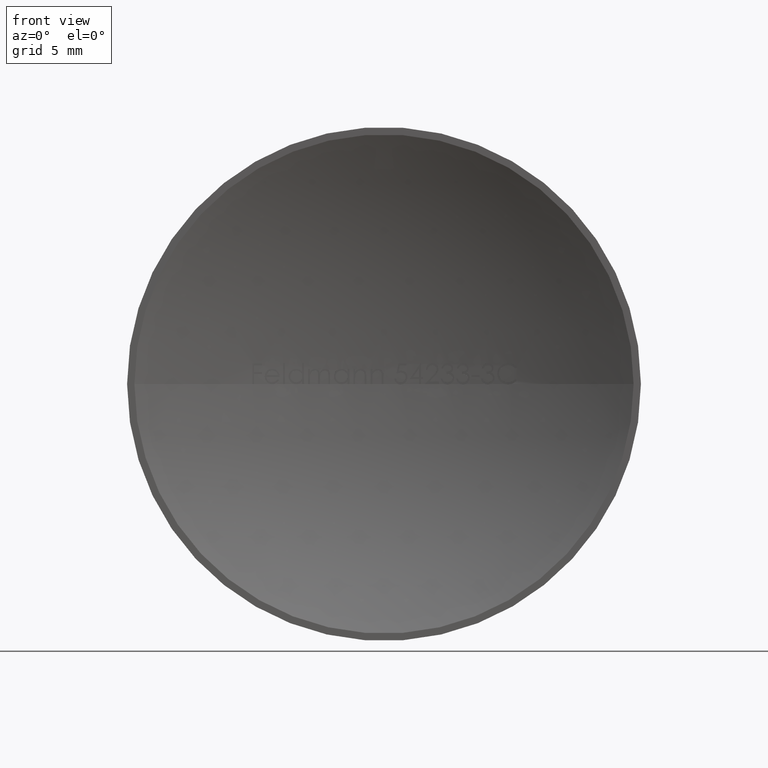
[diagram: clean part render]
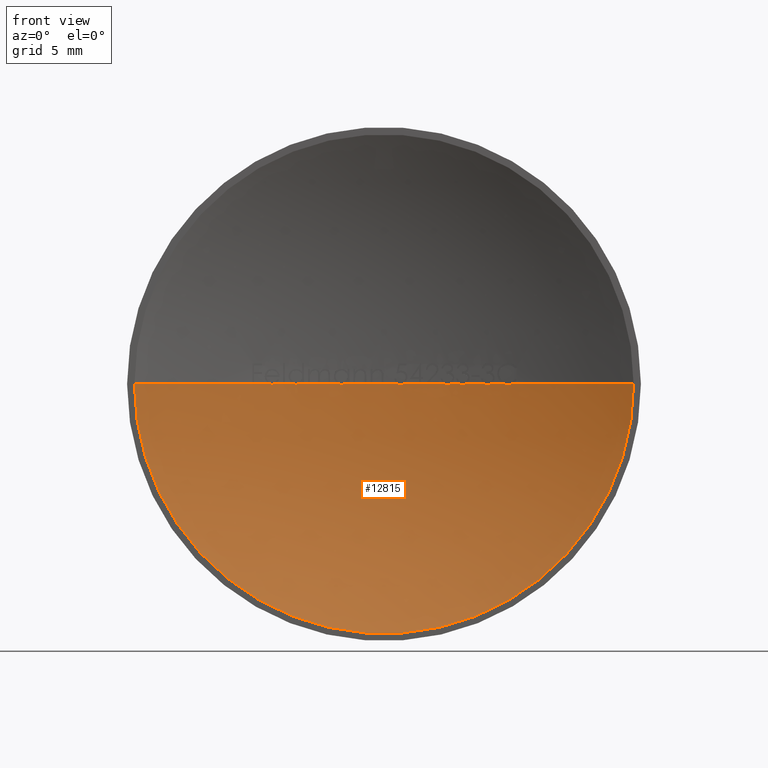
[diagram: same view with one face highlighted and labeled with its STEP entity id]
A machine part, front view. The second image highlights one B-rep face of the part: STEP entity #12815.
In plain terms, the highlighted spherical surface has radius 35.4903 mm.
Its self-contained STEP definition (entity closure, byte-faithful):
#20 = CARTESIAN_POINT ( 'NONE',  ( -0.04240117521366578600, 3.999974671112005400, 2.897537772328175200E-015 ) ) ;
#56 = AXIS2_PLACEMENT_3D ( 'NONE', #890, #8166, #212 ) ;
#125 = CARTESIAN_POINT ( 'NONE',  ( 5.289378749191504500, 3.603636870889138000, -0.02084278131947275500 ) ) ;
#126 = VERTEX_POINT ( 'NONE', #3430 ) ;
#136 = CARTESIAN_POINT ( 'NONE',  ( -2.794767461271358200, 3.889784567808195300, -0.01696047008546997300 ) ) ;
#177 = CARTESIAN_POINT ( 'NONE',  ( 1.231762461655755200, 3.978630332660930200, -0.01179720284565201200 ) ) ;
#212 = DIRECTION ( 'NONE',  ( 1.000000000000000000, 0.0000000000000000000, 0.0000000000000000000 ) ) ;
#214 = CARTESIAN_POINT ( 'NONE',  ( 5.184086218272386600, 3.619327257590883500, -0.03332736078147752900 ) ) ;
#231 = B_SPLINE_CURVE_WITH_KNOTS ( 'NONE', 3,
 ( #1361, #2340, #9658, #11810, #4521, #11680 ),
 .UNSPECIFIED., .F., .F.,
 ( 4, 2, 4 ),
 ( 0.0000000000000000000, 0.1451483626187423100, 0.2902967252374846200 ),
 .UNSPECIFIED. ) ;
#278 = VERTEX_POINT ( 'NONE', #525 ) ;
#298 = CIRCLE ( 'NONE', #4850, 35.49031249999995900 ) ;
#328 = DIRECTION ( 'NONE',  ( 0.0000000000000000000, -0.0000000000000000000, 1.000000000000000000 ) ) ;
#368 = AXIS2_PLACEMENT_3D ( 'NONE', #3068, #10386, #5307 ) ;
#424 = CARTESIAN_POINT ( 'NONE',  ( 5.096145653006650500, 3.632210737648179600, -0.02987415655121449700 ) ) ;
#457 = CARTESIAN_POINT ( 'NONE',  ( 16.36833833961164700, -5.876582875017628900E-017, -2.004543315496607100E-015 ) ) ;
#461 = DIRECTION ( 'NONE',  ( 1.000000000000000000, 0.0000000000000000000, 0.0000000000000000000 ) ) ;
#465 = DIRECTION ( 'NONE',  ( -1.224646799147353200E-016, 7.147165931888596700E-031, -1.000000000000000000 ) ) ;
#471 = CARTESIAN_POINT ( 'NONE',  ( 1.167220775306751800E-014, -31.49031249999995200, 0.0000000000000000000 ) ) ;
#499 = AXIS2_PLACEMENT_3D ( 'NONE', #11722, #1360, #12670 ) ;
#515 = AXIS2_PLACEMENT_3D ( 'NONE', #7256, #12516, #13067 ) ;
#523 = CARTESIAN_POINT ( 'NONE',  ( 4.981234215366165500, 3.648691267801142900, -1.070503195373399400E-005 ) ) ;
#525 = CARTESIAN_POINT ( 'NONE',  ( -7.198439620956127900, 3.262309432472975800, -6.394050978554282400E-007 ) ) ;
#530 = CARTESIAN_POINT ( 'NONE',  ( 1.167220775306751800E-014, -31.49031249999995200, 0.0000000000000000000 ) ) ;
#536 = CARTESIAN_POINT ( 'NONE',  ( 0.9062174198603552000, 3.988428193026531100, 9.686141385284946100E-006 ) ) ;
#541 = CARTESIAN_POINT ( 'NONE',  ( 1.167220775306751800E-014, -31.49031249999995200, 0.0000000000000000000 ) ) ;
#595 = CIRCLE ( 'NONE', #515, 35.49031249999995900 ) ;
#604 = CARTESIAN_POINT ( 'NONE',  ( 5.010017504780373400, 3.644611020908704400, -0.01193980852341045400 ) ) ;
#611 = VERTEX_POINT ( 'NONE', #9187 ) ;
#632 = B_SPLINE_CURVE_WITH_KNOTS ( 'NONE', 3,
 ( #2966, #5207, #10365, #12466 ),
 .UNSPECIFIED., .F., .F.,
 ( 4, 4 ),
 ( 0.6399536667278555900, 1.000000000000000000 ),
 .UNSPECIFIED. ) ;
#647 = CARTESIAN_POINT ( 'NONE',  ( -7.340968466212598500, 3.232477936083666400, -0.01696047008547008400 ) ) ;
#678 = EDGE_CURVE ( 'NONE', #6561, #7117, #7903, .T. ) ;
#708 = CARTESIAN_POINT ( 'NONE',  ( 1.167220775306751800E-014, -31.49031249999995200, 0.0000000000000000000 ) ) ;
#710 = ORIENTED_EDGE ( 'NONE', *, *, #2263, .T. ) ;
#739 = CARTESIAN_POINT ( 'NONE',  ( -2.281183226495717700, 3.926611200892084200, 2.891548149729563600E-015 ) ) ;
#789 = CARTESIAN_POINT ( 'NONE',  ( -3.536258012820507000, 3.823384001703407500, 2.883120359124806300E-015 ) ) ;
#790 = ORIENTED_EDGE ( 'NONE', *, *, #11211, .T. ) ;
#793 = DIRECTION ( 'NONE',  ( 0.0000000000000000000, 0.0000000000000000000, 1.000000000000000000 ) ) ;
#829 = ORIENTED_EDGE ( 'NONE', *, *, #5659, .T. ) ;
#839 = CIRCLE ( 'NONE', #11099, 35.49031249999995900 ) ;
#861 = CARTESIAN_POINT ( 'NONE',  ( 1.167220775306751800E-014, -31.49031249999995200, 0.0000000000000000000 ) ) ;
#874 = CARTESIAN_POINT ( 'NONE',  ( -7.340968466212598500, 3.232477936083666400, -0.01696047008547008400 ) ) ;
#888 = CIRCLE ( 'NONE', #8474, 35.49031249999995900 ) ;
#890 = CARTESIAN_POINT ( 'NONE',  ( 1.167220775306751800E-014, -31.49031249999995200, 0.0000000000000000000 ) ) ;
#901 = DIRECTION ( 'NONE',  ( -1.000000000000000000, 0.0000000000000000000, 1.224646799147353500E-016 ) ) ;
#920 = CARTESIAN_POINT ( 'NONE',  ( -2.736590742355968300, 3.894335117221183300, -0.01425535986851741300 ) ) ;
#927 = EDGE_CURVE ( 'NONE', #9991, #9609, #1677, .T. ) ;
#1065 = DIRECTION ( 'NONE',  ( 0.0000000000000000000, 0.0000000000000000000, 1.000000000000000000 ) ) ;
#1153 = AXIS2_PLACEMENT_3D ( 'NONE', #530, #7810, #1602 ) ;
#1169 = CARTESIAN_POINT ( 'NONE',  ( -5.249265491452981700, 3.609651789837927400, 2.865670594515755900E-015 ) ) ;
#1181 = CARTESIAN_POINT ( 'NONE',  ( 6.917482519355795400, 3.319330730380675800, -0.02086003885679366500 ) ) ;
#1204 = EDGE_CURVE ( 'NONE', #12278, #4525, #1755, .T. ) ;
#1209 = AXIS2_PLACEMENT_3D ( 'NONE', #3635, #5708, #2681 ) ;
#1226 = CARTESIAN_POINT ( 'NONE',  ( 6.948973740460139900, 3.313063633298218000, -0.01195083355097873200 ) ) ;
#1227 = DIRECTION ( 'NONE',  ( 1.000000000000000000, -5.836103876533815000E-015, 0.0000000000000000000 ) ) ;
#1231 = VERTEX_POINT ( 'NONE', #6198 ) ;
#1289 = EDGE_CURVE ( 'NONE', #278, #4886, #13494, .T. ) ;
#1299 = DIRECTION ( 'NONE',  ( 1.000000000000000000, 0.0000000000000000000, 0.0000000000000000000 ) ) ;
#1323 = CARTESIAN_POINT ( 'NONE',  ( -7.480902796073367600, 3.202602409566082600, -4.805172963448699400E-007 ) ) ;
#1356 = ORIENTED_EDGE ( 'NONE', *, *, #4001, .T. ) ;
#1360 = DIRECTION ( 'NONE',  ( 0.0000000000000000000, 0.0000000000000000000, 1.000000000000000000 ) ) ;
#1361 = CARTESIAN_POINT ( 'NONE',  ( 4.147099943242526600, 3.756853241066791400, -0.03392094017094051500 ) ) ;
#1390 = CARTESIAN_POINT ( 'NONE',  ( 6.792933276575863200, 3.343825758574209500, -0.03392094017094039700 ) ) ;
#1393 = EDGE_CURVE ( 'NONE', #6819, #10949, #9860, .T. ) ;
#1502 = FACE_OUTER_BOUND ( 'NONE', #1535, .T. ) ;
#1524 = CARTESIAN_POINT ( 'NONE',  ( 1.107055390133977200, 3.982729428789325300, -0.03361713872122365500 ) ) ;
#1535 = EDGE_LOOP ( 'NONE', ( #5119, #710, #1356, #5187, #8241, #4481, #2639, #5267, #3949, #2043, #4425, #4756, #9494, #6425, #5454, #11302, #4110, #2947, #11479, #790, #9440, #8103, #11522, #10749, #12515, #11839, #6010, #4875, #9051, #13257, #2463, #9542, #10131, #2763, #10062, #2420, #10896, #9510, #829, #12435, #4096, #7746, #9178, #13463, #6347, #8161, #7492, #10324, #11510, #5122, #11545, #11073, #3454 ) ) ;
#1563 = CARTESIAN_POINT ( 'NONE',  ( 1.014729858757009500, 3.985480669459787500, -0.03003841555225543800 ) ) ;
#1567 = CARTESIAN_POINT ( 'NONE',  ( -5.762849726228624900, 3.528990130449652700, -0.01696047008547008800 ) ) ;
#1602 = DIRECTION ( 'NONE',  ( 1.000000000000000000, 0.0000000000000000000, 0.0000000000000000000 ) ) ;
#1619 = DIRECTION ( 'NONE',  ( 1.000000000000000000, 0.0000000000000000000, 0.0000000000000000000 ) ) ;
#1623 = CIRCLE ( 'NONE', #13206, 35.49031249999995900 ) ;
#1652 = EDGE_CURVE ( 'NONE', #3293, #611, #3857, .T. ) ;
#1667 = B_SPLINE_CURVE_WITH_KNOTS ( 'NONE', 3,
 ( #12634, #177, #7466, #8722, #1524, #2578 ),
 .UNSPECIFIED., .F., .F.,
 ( 4, 2, 4 ),
 ( 0.7374495315426997700, 0.8687247657713499400, 1.000000000000000000 ),
 .UNSPECIFIED. ) ;
#1675 = AXIS2_PLACEMENT_3D ( 'NONE', #4807, #13289, #12060 ) ;
#1677 = B_SPLINE_CURVE_WITH_KNOTS ( 'NONE', 3,
 ( #6711, #2653, #424, #6843, #604, #523 ),
 .UNSPECIFIED., .F., .F.,
 ( 4, 2, 4 ),
 ( 0.0000000000000000000, 0.1454558993737649400, 0.2909117987475298700 ),
 .UNSPECIFIED. ) ;
#1711 = CARTESIAN_POINT ( 'NONE',  ( 7.890548574899000300, 3.111732099080526800, 7.954667789364692800E-006 ) ) ;
#1743 = EDGE_CURVE ( 'NONE', #611, #13028, #231, .T. ) ;
#1748 = CIRCLE ( 'NONE', #7872, 35.49031249999995900 ) ;
#1755 = CIRCLE ( 'NONE', #2682, 35.49031249999995900 ) ;
#1779 = DIRECTION ( 'NONE',  ( 0.0000000000000000000, -0.0000000000000000000, 1.000000000000000000 ) ) ;
#1798 = CARTESIAN_POINT ( 'NONE',  ( -1.280515491452984600, 3.976891526026714800, 7.840895989333842900E-017 ) ) ;
#1812 = CARTESIAN_POINT ( 'NONE',  ( -2.928430605842082400, 3.878975918262332500, -2.873717336918467000E-008 ) ) ;
#1829 = DIRECTION ( 'NONE',  ( 1.000000000000000000, 0.0000000000000000000, 0.0000000000000000000 ) ) ;
#1830 = EDGE_CURVE ( 'NONE', #7333, #9594, #10189, .T. ) ;
#1831 = EDGE_CURVE ( 'NONE', #9071, #13325, #6662, .T. ) ;
#1848 = EDGE_CURVE ( 'NONE', #1231, #11019, #8564, .T. ) ;
#1876 = CARTESIAN_POINT ( 'NONE',  ( -16.36833833961147600, 1.926130716621757600E-013, 0.0000000000000000000 ) ) ;
#1940 = CARTESIAN_POINT ( 'NONE',  ( 1.167220775306751800E-014, -31.49031249999995200, 0.0000000000000000000 ) ) ;
#1966 = AXIS2_PLACEMENT_3D ( 'NONE', #1940, #6019, #6099 ) ;
#1986 = CIRCLE ( 'NONE', #5562, 16.36833833961167200 ) ;
#2001 = CARTESIAN_POINT ( 'NONE',  ( -2.766479424443048600, 3.892009778755308500, -0.01612958546622841900 ) ) ;
#2006 = DIRECTION ( 'NONE',  ( -1.000000000000000000, 0.0000000000000000000, 1.224646799147353500E-016 ) ) ;
#2042 = CARTESIAN_POINT ( 'NONE',  ( -2.779498997433753600, 3.890990833827674000, -0.01660653285778445500 ) ) ;
#2043 = ORIENTED_EDGE ( 'NONE', *, *, #8608, .T. ) ;
#2075 = EDGE_CURVE ( 'NONE', #11969, #9866, #10856, .T. ) ;
#2088 = CARTESIAN_POINT ( 'NONE',  ( -7.222068068517392800, 3.257415431596583800, -0.006161802370341957700 ) ) ;
#2096 = CARTESIAN_POINT ( 'NONE',  ( 1.167220775306751800E-014, -31.49031249999995200, 0.0000000000000000000 ) ) ;
#2120 = CARTESIAN_POINT ( 'NONE',  ( 4.226383966659492200, 3.747442547976652900, -0.02858827589396395100 ) ) ;
#2176 = AXIS2_PLACEMENT_3D ( 'NONE', #6878, #10963, #5761 ) ;
#2194 = CARTESIAN_POINT ( 'NONE',  ( 1.167220775306751800E-014, -31.49031249999995200, 0.0000000000000000000 ) ) ;
#2244 = CARTESIAN_POINT ( 'NONE',  ( 5.164728148370734600, 3.622174080572757100, -0.03392094017094061200 ) ) ;
#2247 = EDGE_CURVE ( 'NONE', #5719, #11019, #6469, .T. ) ;
#2250 = VERTEX_POINT ( 'NONE', #457 ) ;
#2254 = CARTESIAN_POINT ( 'NONE',  ( -2.843377004694650700, 3.885945403967600700, -0.01564087652057142800 ) ) ;
#2263 = EDGE_CURVE ( 'NONE', #10215, #7831, #11977, .T. ) ;
#2273 = CARTESIAN_POINT ( 'NONE',  ( 1.167220775306751800E-014, -31.49031249999995200, 0.0000000000000000000 ) ) ;
#2319 = CARTESIAN_POINT ( 'NONE',  ( 1.167220775306751800E-014, -31.49031249999995200, 0.0000000000000000000 ) ) ;
#2340 = CARTESIAN_POINT ( 'NONE',  ( 4.111330221126714900, 3.761062629512424800, -0.03308370938710002800 ) ) ;
#2372 = AXIS2_PLACEMENT_3D ( 'NONE', #5292, #12560, #8549 ) ;
#2389 = CARTESIAN_POINT ( 'NONE',  ( 6.792933276575863200, 3.343825758574209500, -0.03392094017094039700 ) ) ;
#2408 = DIRECTION ( 'NONE',  ( 0.0000000000000000000, 0.0000000000000000000, 1.000000000000000000 ) ) ;
#2420 = ORIENTED_EDGE ( 'NONE', *, *, #11210, .T. ) ;
#2436 = CIRCLE ( 'NONE', #2521, 35.49031249999995900 ) ;
#2463 = ORIENTED_EDGE ( 'NONE', *, *, #3339, .T. ) ;
#2492 = EDGE_CURVE ( 'NONE', #12353, #11713, #5070, .T. ) ;
#2503 = DIRECTION ( 'NONE',  ( 0.0000000000000000000, -0.0000000000000000000, 1.000000000000000000 ) ) ;
#2512 = CIRCLE ( 'NONE', #56, 35.49031249999995900 ) ;
#2521 = AXIS2_PLACEMENT_3D ( 'NONE', #2319, #2408, #3467 ) ;
#2532 = EDGE_CURVE ( 'NONE', #7101, #6528, #595, .T. ) ;
#2578 = CARTESIAN_POINT ( 'NONE',  ( 1.073544754941247100, 3.983743264412015400, -0.03392094017094014100 ) ) ;
#2597 = DIRECTION ( 'NONE',  ( 1.000000000000000000, 0.0000000000000000000, 0.0000000000000000000 ) ) ;
#2639 = ORIENTED_EDGE ( 'NONE', *, *, #4755, .T. ) ;
#2653 = CARTESIAN_POINT ( 'NONE',  ( 5.129012153604246100, 3.627428386903134100, -0.03308496693645021600 ) ) ;
#2677 = CARTESIAN_POINT ( 'NONE',  ( 1.167220775306751800E-014, -31.49031249999995200, 0.0000000000000000000 ) ) ;
#2681 = DIRECTION ( 'NONE',  ( -1.000000000000000000, 0.0000000000000000000, 1.224646799147353500E-016 ) ) ;
#2682 = AXIS2_PLACEMENT_3D ( 'NONE', #861, #12368, #901 ) ;
#2715 = EDGE_CURVE ( 'NONE', #7874, #2882, #5333, .T. ) ;
#2763 = ORIENTED_EDGE ( 'NONE', *, *, #11559, .T. ) ;
#2764 = DIRECTION ( 'NONE',  ( -1.000000000000000000, 5.865454611514538600E-015, 0.0000000000000000000 ) ) ;
#2804 = CARTESIAN_POINT ( 'NONE',  ( -4.859174679487173500, 3.665778050314150200, 2.870252917531777200E-015 ) ) ;
#2882 = VERTEX_POINT ( 'NONE', #1876 ) ;
#2937 = EDGE_CURVE ( 'NONE', #6960, #3548, #5318, .T. ) ;
#2947 = ORIENTED_EDGE ( 'NONE', *, *, #7899, .T. ) ;
#2966 = CARTESIAN_POINT ( 'NONE',  ( 8.366505726959221800, 2.999741655494814200, 1.794564566907969700E-005 ) ) ;
#3061 = CARTESIAN_POINT ( 'NONE',  ( -7.280943503593665200, 3.245117335512834900, -0.01445705627685060300 ) ) ;
#3068 = CARTESIAN_POINT ( 'NONE',  ( 1.167220775306751800E-014, -31.49031249999995200, 0.0000000000000000000 ) ) ;
#3114 = CARTESIAN_POINT ( 'NONE',  ( 8.133605435363257600, 3.055390464902947700, -0.03392094017094016800 ) ) ;
#3121 = CIRCLE ( 'NONE', #13189, 35.49031249999995900 ) ;
#3153 = DIRECTION ( 'NONE',  ( -1.224646799147353200E-016, 7.147165931888596700E-031, -1.000000000000000000 ) ) ;
#3257 = CARTESIAN_POINT ( 'NONE',  ( 1.167220775306751800E-014, -31.49031249999995200, 0.0000000000000000000 ) ) ;
#3266 = DIRECTION ( 'NONE',  ( 0.0000000000000000000, 0.0000000000000000000, 1.000000000000000000 ) ) ;
#3278 = CARTESIAN_POINT ( 'NONE',  ( 1.261122512266104100, 3.977586285768892200, -9.228704546325044500E-007 ) ) ;
#3293 = VERTEX_POINT ( 'NONE', #6066 ) ;
#3339 = EDGE_CURVE ( 'NONE', #11481, #5235, #6300, .T. ) ;
#3401 = EDGE_CURVE ( 'NONE', #10415, #7333, #11157, .T. ) ;
#3430 = CARTESIAN_POINT ( 'NONE',  ( -2.399906517094008600, 3.918764444434272400, 1.469518917206160100E-016 ) ) ;
#3454 = ORIENTED_EDGE ( 'NONE', *, *, #1831, .T. ) ;
#3467 = DIRECTION ( 'NONE',  ( 1.000000000000000000, 0.0000000000000000000, 0.0000000000000000000 ) ) ;
#3511 = CARTESIAN_POINT ( 'NONE',  ( 6.757234977287380300, 3.350788023760801900, -0.03308538111911713000 ) ) ;
#3513 = EDGE_CURVE ( 'NONE', #8175, #2250, #5968, .T. ) ;
#3548 = VERTEX_POINT ( 'NONE', #3812 ) ;
#3615 = CARTESIAN_POINT ( 'NONE',  ( -2.009815705128200000, 3.943046389316112500, 0.0000000000000000000 ) ) ;
#3626 = CARTESIAN_POINT ( 'NONE',  ( -5.734602234320489000, 3.533628991692951500, -0.01613153692661142800 ) ) ;
#3635 = CARTESIAN_POINT ( 'NONE',  ( 1.167220775306751800E-014, -31.49031249999995200, 0.0000000000000000000 ) ) ;
#3666 = CARTESIAN_POINT ( 'NONE',  ( 1.002373593261350900, 3.985833673172856100, -0.02840834867236532700 ) ) ;
#3724 = CIRCLE ( 'NONE', #8375, 35.49031249999995900 ) ;
#3781 = AXIS2_PLACEMENT_3D ( 'NONE', #708, #13088, #10084 ) ;
#3812 = CARTESIAN_POINT ( 'NONE',  ( -0.7717013888888796200, 3.991609070203096200, 2.896854778569772400E-015 ) ) ;
#3857 = B_SPLINE_CURVE_WITH_KNOTS ( 'NONE', 3,
 ( #6291, #13373, #7344, #2120, #7298, #11456, #8365, #9310 ),
 .UNSPECIFIED., .F., .F.,
 ( 4, 2, 2, 4 ),
 ( 0.7255880526799255400, 0.8627940263399627200, 0.9313970131699813600, 1.000000000000000000 ),
 .UNSPECIFIED. ) ;
#3875 = CARTESIAN_POINT ( 'NONE',  ( 0.9062174198603552000, 3.988428193026531100, 9.686141385284946100E-006 ) ) ;
#3894 = AXIS2_PLACEMENT_3D ( 'NONE', #6792, #9828, #5664 ) ;
#3895 = CIRCLE ( 'NONE', #3908, 35.49031249999995900 ) ;
#3908 = AXIS2_PLACEMENT_3D ( 'NONE', #12035, #10032, #6821 ) ;
#3942 = CARTESIAN_POINT ( 'NONE',  ( -5.811862906027681900, 3.520925063420861500, -0.01562991908451089000 ) ) ;
#3949 = ORIENTED_EDGE ( 'NONE', *, *, #2532, .T. ) ;
#3968 = VERTEX_POINT ( 'NONE', #11209 ) ;
#4001 = EDGE_CURVE ( 'NONE', #7831, #6960, #1748, .T. ) ;
#4007 = DIRECTION ( 'NONE',  ( 0.0000000000000000000, 0.0000000000000000000, 1.000000000000000000 ) ) ;
#4010 = CARTESIAN_POINT ( 'NONE',  ( -7.291967134959256700, 3.242804735986334600, -0.01529153312746661100 ) ) ;
#4057 = CARTESIAN_POINT ( 'NONE',  ( -2.679049517426400400, 3.898746387515347000, -0.005833338713473216700 ) ) ;
#4073 = VERTEX_POINT ( 'NONE', #739 ) ;
#4081 = CARTESIAN_POINT ( 'NONE',  ( 8.366505726959221800, 2.999741655494814200, 1.794564566907969700E-005 ) ) ;
#4096 = ORIENTED_EDGE ( 'NONE', *, *, #1204, .F. ) ;
#4110 = ORIENTED_EDGE ( 'NONE', *, *, #11662, .T. ) ;
#4146 = AXIS2_PLACEMENT_3D ( 'NONE', #8293, #1065, #11339 ) ;
#4199 = DIRECTION ( 'NONE',  ( 0.0000000000000000000, 0.0000000000000000000, 1.000000000000000000 ) ) ;
#4285 = EDGE_CURVE ( 'NONE', #13355, #5919, #3724, .T. ) ;
#4288 = AXIS2_PLACEMENT_3D ( 'NONE', #13081, #793, #1829 ) ;
#4292 = DIRECTION ( 'NONE',  ( 1.000000000000000000, 0.0000000000000000000, 0.0000000000000000000 ) ) ;
#4385 = CARTESIAN_POINT ( 'NONE',  ( 5.201484318833580600, 3.616752855053134900, -0.03239781961344686400 ) ) ;
#4425 = ORIENTED_EDGE ( 'NONE', *, *, #12321, .T. ) ;
#4464 = CARTESIAN_POINT ( 'NONE',  ( -8.641359508547001400, 2.931906882133121300, 1.058261326242389200E-015 ) ) ;
#4467 = CARTESIAN_POINT ( 'NONE',  ( 6.609410829272115400, 3.379129264892867900, -9.610319676062828600E-006 ) ) ;
#4481 = ORIENTED_EDGE ( 'NONE', *, *, #1393, .T. ) ;
#4489 = CARTESIAN_POINT ( 'NONE',  ( -5.647129101906266200, 3.547848674667928300, -0.005832774695669174800 ) ) ;
#4521 = CARTESIAN_POINT ( 'NONE',  ( 3.992394006078609600, 3.774739740483246100, -0.01192383024999700400 ) ) ;
#4525 = VERTEX_POINT ( 'NONE', #8406 ) ;
#4526 = EDGE_CURVE ( 'NONE', #7117, #4999, #12389, .T. ) ;
#4552 = AXIS2_PLACEMENT_3D ( 'NONE', #10830, #7533, #1299 ) ;
#4588 = DIRECTION ( 'NONE',  ( 1.000000000000000000, 0.0000000000000000000, 0.0000000000000000000 ) ) ;
#4594 = DIRECTION ( 'NONE',  ( 0.0000000000000000000, -0.0000000000000000000, 1.000000000000000000 ) ) ;
#4595 = DIRECTION ( 'NONE',  ( 1.000000000000000000, 0.0000000000000000000, 0.0000000000000000000 ) ) ;
#4602 = CIRCLE ( 'NONE', #10681, 35.49031249999995900 ) ;
#4651 = DIRECTION ( 'NONE',  ( 1.000000000000000000, 0.0000000000000000000, 0.0000000000000000000 ) ) ;
#4693 = EDGE_CURVE ( 'NONE', #12871, #7101, #7580, .T. ) ;
#4755 = EDGE_CURVE ( 'NONE', #10949, #12871, #7896, .T. ) ;
#4756 = ORIENTED_EDGE ( 'NONE', *, *, #4943, .T. ) ;
#4807 = CARTESIAN_POINT ( 'NONE',  ( 1.167220775306751800E-014, -31.49031249999995200, 0.0000000000000000000 ) ) ;
#4850 = AXIS2_PLACEMENT_3D ( 'NONE', #11280, #1779, #6073 ) ;
#4875 = ORIENTED_EDGE ( 'NONE', *, *, #10043, .T. ) ;
#4886 = VERTEX_POINT ( 'NONE', #647 ) ;
#4932 = CARTESIAN_POINT ( 'NONE',  ( 8.043512911662691800, 3.076602895013974800, -0.03329391383724942400 ) ) ;
#4943 = EDGE_CURVE ( 'NONE', #126, #6561, #5459, .T. ) ;
#4999 = VERTEX_POINT ( 'NONE', #1812 ) ;
#5043 = VERTEX_POINT ( 'NONE', #7203 ) ;
#5070 = B_SPLINE_CURVE_WITH_KNOTS ( 'NONE', 3,
 ( #11051, #3942, #8000, #13097 ),
 .UNSPECIFIED., .F., .F.,
 ( 4, 4 ),
 ( 0.0000000000000000000, 0.1704098550142772700 ),
 .UNSPECIFIED. ) ;
#5106 = EDGE_CURVE ( 'NONE', #5719, #7873, #888, .T. ) ;
#5117 = CARTESIAN_POINT ( 'NONE',  ( -7.326210744162756900, 3.235595371120184400, -0.01662979884099978100 ) ) ;
#5119 = ORIENTED_EDGE ( 'NONE', *, *, #6943, .F. ) ;
#5122 = ORIENTED_EDGE ( 'NONE', *, *, #5106, .T. ) ;
#5187 = ORIENTED_EDGE ( 'NONE', *, *, #2937, .T. ) ;
#5207 = CARTESIAN_POINT ( 'NONE',  ( 8.291231246175300400, 3.018001951896329700, -0.02380736246281459800 ) ) ;
#5235 = VERTEX_POINT ( 'NONE', #5877 ) ;
#5267 = ORIENTED_EDGE ( 'NONE', *, *, #4693, .T. ) ;
#5292 = CARTESIAN_POINT ( 'NONE',  ( 1.167220775306751800E-014, -31.49031249999995200, 0.0000000000000000000 ) ) ;
#5307 = DIRECTION ( 'NONE',  ( 1.000000000000000000, 0.0000000000000000000, 0.0000000000000000000 ) ) ;
#5315 = CARTESIAN_POINT ( 'NONE',  ( 2.166242032335205700E-013, 4.000000000000010700, 0.0000000000000000000 ) ) ;
#5318 = CIRCLE ( 'NONE', #12092, 35.49031249999995900 ) ;
#5333 = CIRCLE ( 'NONE', #11480, 35.49031249999995900 ) ;
#5361 = CARTESIAN_POINT ( 'NONE',  ( 5.350893475701892200, 3.594302461672886500, 9.022393239727542800E-007 ) ) ;
#5454 = ORIENTED_EDGE ( 'NONE', *, *, #9436, .T. ) ;
#5459 = CIRCLE ( 'NONE', #1966, 35.49031249999995900 ) ;
#5499 = CARTESIAN_POINT ( 'NONE',  ( 5.232362041503577600, 3.612166368842474100, -0.02985482975270863100 ) ) ;
#5507 = CARTESIAN_POINT ( 'NONE',  ( -5.713077543703390900, 3.537147048955326500, -0.01493826692466926000 ) ) ;
#5557 = EDGE_CURVE ( 'NONE', #10682, #9866, #7151, .T. ) ;
#5562 = AXIS2_PLACEMENT_3D ( 'NONE', #10586, #6462, #1227 ) ;
#5611 = VERTEX_POINT ( 'NONE', #11403 ) ;
#5659 = EDGE_CURVE ( 'NONE', #11969, #5043, #12465, .T. ) ;
#5664 = DIRECTION ( 'NONE',  ( -1.000000000000000000, 0.0000000000000000000, 1.224646799147353500E-016 ) ) ;
#5708 = DIRECTION ( 'NONE',  ( -1.224646799147353200E-016, 7.147165931888596700E-031, -1.000000000000000000 ) ) ;
#5712 = CARTESIAN_POINT ( 'NONE',  ( 1.167220775306751800E-014, -31.49031249999995200, 0.0000000000000000000 ) ) ;
#5719 = VERTEX_POINT ( 'NONE', #8449 ) ;
#5726 = EDGE_CURVE ( 'NONE', #11570, #12353, #6230, .T. ) ;
#5761 = DIRECTION ( 'NONE',  ( 1.000000000000000000, 0.0000000000000000000, 0.0000000000000000000 ) ) ;
#5826 = B_SPLINE_CURVE_WITH_KNOTS ( 'NONE', 3,
 ( #9902, #13084, #10245, #8024 ),
 .UNSPECIFIED., .F., .F.,
 ( 4, 4 ),
 ( 0.0000000000000000000, 0.1822482331137778000 ),
 .UNSPECIFIED. ) ;
#5877 = CARTESIAN_POINT ( 'NONE',  ( -8.522636217948715400, 2.961493740662700400, 3.153286628334461600E-015 ) ) ;
#5878 = CARTESIAN_POINT ( 'NONE',  ( 1.167220775306751800E-014, -31.49031249999995200, 0.0000000000000000000 ) ) ;
#5919 = VERTEX_POINT ( 'NONE', #2804 ) ;
#5921 = CARTESIAN_POINT ( 'NONE',  ( -1.891092414529906400, 3.949580993454019100, 2.893423475258767400E-015 ) ) ;
#5925 = AXIS2_PLACEMENT_3D ( 'NONE', #12947, #7770, #4651 ) ;
#5960 = CARTESIAN_POINT ( 'NONE',  ( -2.794767461271358200, 3.889784567808195300, -0.01696047008546997300 ) ) ;
#5968 = CIRCLE ( 'NONE', #3781, 35.49031249999995900 ) ;
#5969 = EDGE_CURVE ( 'NONE', #5235, #7874, #7638, .T. ) ;
#5971 = DIRECTION ( 'NONE',  ( 0.0000000000000000000, 0.0000000000000000000, 1.000000000000000000 ) ) ;
#5988 = CARTESIAN_POINT ( 'NONE',  ( -5.367988782051273100, 3.591691117003241300, 3.286945139899128600E-016 ) ) ;
#5992 = EDGE_CURVE ( 'NONE', #1231, #13028, #3121, .T. ) ;
#6010 = ORIENTED_EDGE ( 'NONE', *, *, #8063, .T. ) ;
#6019 = DIRECTION ( 'NONE',  ( 0.0000000000000000000, -0.0000000000000000000, 1.000000000000000000 ) ) ;
#6046 = EDGE_CURVE ( 'NONE', #9594, #11570, #10718, .T. ) ;
#6065 = DIRECTION ( 'NONE',  ( 1.000000000000000000, 0.0000000000000000000, 0.0000000000000000000 ) ) ;
#6066 = CARTESIAN_POINT ( 'NONE',  ( 4.333267627769803500, 3.734466560397992300, 7.343978397681090700E-007 ) ) ;
#6073 = DIRECTION ( 'NONE',  ( 1.000000000000000000, 0.0000000000000000000, 0.0000000000000000000 ) ) ;
#6077 = CARTESIAN_POINT ( 'NONE',  ( -2.656442740533525800, 3.900443107485021400, -2.744948431501370900E-006 ) ) ;
#6099 = DIRECTION ( 'NONE',  ( 1.000000000000000000, 0.0000000000000000000, 0.0000000000000000000 ) ) ;
#6171 = CARTESIAN_POINT ( 'NONE',  ( -2.701730154487146600, 3.897021174970217100, -0.01009510195234698300 ) ) ;
#6198 = CARTESIAN_POINT ( 'NONE',  ( 3.587139423076932200, 3.818251788385677700, 2.882701349217333900E-015 ) ) ;
#6230 = B_SPLINE_CURVE_WITH_KNOTS ( 'NONE', 3,
 ( #8626, #4489, #11731, #10721, #5507, #3626, #9664, #1567 ),
 .UNSPECIFIED., .F., .F.,
 ( 4, 2, 2, 4 ),
 ( 0.6906738883474885500, 0.8453369441737415000, 0.9226684720868707500, 1.000000000000000000 ),
 .UNSPECIFIED. ) ;
#6291 = CARTESIAN_POINT ( 'NONE',  ( 4.333267627769803500, 3.734466560397992300, 7.343978397681090700E-007 ) ) ;
#6300 = CIRCLE ( 'NONE', #2372, 35.49031249999995900 ) ;
#6347 = ORIENTED_EDGE ( 'NONE', *, *, #1652, .T. ) ;
#6358 = EDGE_CURVE ( 'NONE', #3293, #9609, #11194, .T. ) ;
#6359 = CARTESIAN_POINT ( 'NONE',  ( -2.794767461271358200, 3.889784567808195300, -0.01696047008546997300 ) ) ;
#6409 = DIRECTION ( 'NONE',  ( 0.0000000000000000000, -0.0000000000000000000, 1.000000000000000000 ) ) ;
#6425 = ORIENTED_EDGE ( 'NONE', *, *, #4526, .T. ) ;
#6461 = CARTESIAN_POINT ( 'NONE',  ( 6.979112126644362300, 3.307018742463069500, 4.620736878085490800E-006 ) ) ;
#6462 = DIRECTION ( 'NONE',  ( -5.836103876533815000E-015, -1.000000000000000000, -0.0000000000000000000 ) ) ;
#6469 = CIRCLE ( 'NONE', #1209, 35.49031249999995900 ) ;
#6509 = CARTESIAN_POINT ( 'NONE',  ( 6.812113248879684900, 3.340086084533422800, -0.03333282181472695100 ) ) ;
#6528 = VERTEX_POINT ( 'NONE', #3615 ) ;
#6561 = VERTEX_POINT ( 'NONE', #7852 ) ;
#6655 = CARTESIAN_POINT ( 'NONE',  ( 1.073544754941247100, 3.983743264412015400, -0.03392094017094014100 ) ) ;
#6662 = B_SPLINE_CURVE_WITH_KNOTS ( 'NONE', 3,
 ( #9805, #11991, #11948, #1563, #3666, #12996, #6765, #536 ),
 .UNSPECIFIED., .F., .F.,
 ( 4, 2, 2, 4 ),
 ( 0.0000000000000000000, 0.07082400975882698100, 0.1416480195176539600, 0.2832960390353084200 ),
 .UNSPECIFIED. ) ;
#6711 = CARTESIAN_POINT ( 'NONE',  ( 5.164728148370734600, 3.622174080572757100, -0.03392094017094061200 ) ) ;
#6765 = CARTESIAN_POINT ( 'NONE',  ( 0.9330089560494927400, 3.987744015633428100, -0.01215022523797493700 ) ) ;
#6792 = CARTESIAN_POINT ( 'NONE',  ( 1.167220775306751800E-014, -31.49031249999995200, 0.0000000000000000000 ) ) ;
#6819 = VERTEX_POINT ( 'NONE', #7309 ) ;
#6821 = DIRECTION ( 'NONE',  ( 1.000000000000000000, 0.0000000000000000000, 0.0000000000000000000 ) ) ;
#6843 = CARTESIAN_POINT ( 'NONE',  ( 5.036092723212755500, 3.640879375177801200, -0.01894923928158905700 ) ) ;
#6878 = CARTESIAN_POINT ( 'NONE',  ( 1.167220775306751800E-014, -31.49031249999995200, 0.0000000000000000000 ) ) ;
#6943 = EDGE_CURVE ( 'NONE', #10215, #13325, #6969, .T. ) ;
#6960 = VERTEX_POINT ( 'NONE', #12013 ) ;
#6964 = B_SPLINE_CURVE_WITH_KNOTS ( 'NONE', 3,
 ( #9617, #8487, #125, #9521, #5499, #4385, #214, #2244 ),
 .UNSPECIFIED., .F., .F.,
 ( 4, 2, 2, 4 ),
 ( 0.7251704481881498000, 0.8625852240940747900, 0.9312926120470373900, 1.000000000000000000 ),
 .UNSPECIFIED. ) ;
#6966 = CARTESIAN_POINT ( 'NONE',  ( 7.890548574899000300, 3.111732099080526800, 7.954667789364692800E-006 ) ) ;
#6969 = CIRCLE ( 'NONE', #7537, 35.49031249999995900 ) ;
#6989 = CARTESIAN_POINT ( 'NONE',  ( 1.167220775306751800E-014, -31.49031249999995200, 0.0000000000000000000 ) ) ;
#7044 = CIRCLE ( 'NONE', #2176, 35.49031249999995900 ) ;
#7101 = VERTEX_POINT ( 'NONE', #5921 ) ;
#7117 = VERTEX_POINT ( 'NONE', #5960 ) ;
#7151 = B_SPLINE_CURVE_WITH_KNOTS ( 'NONE', 3,
 ( #11222, #4932, #11174, #6966 ),
 .UNSPECIFIED., .F., .F.,
 ( 4, 4 ),
 ( 0.0000000000000000000, 0.3953349086765442500 ),
 .UNSPECIFIED. ) ;
#7186 = CIRCLE ( 'NONE', #11198, 35.49031249999995900 ) ;
#7203 = CARTESIAN_POINT ( 'NONE',  ( 6.792933276575863200, 3.343825758574209500, -0.03392094017094039700 ) ) ;
#7217 = AXIS2_PLACEMENT_3D ( 'NONE', #12323, #3153, #9139 ) ;
#7220 = CARTESIAN_POINT ( 'NONE',  ( -7.198439620956127900, 3.262309432472975800, -6.394050978554282400E-007 ) ) ;
#7237 = CARTESIAN_POINT ( 'NONE',  ( 1.167220775306751800E-014, -31.49031249999995200, 0.0000000000000000000 ) ) ;
#7239 = AXIS2_PLACEMENT_3D ( 'NONE', #11785, #328, #4588 ) ;
#7256 = CARTESIAN_POINT ( 'NONE',  ( 1.167220775306751800E-014, -31.49031249999995200, 0.0000000000000000000 ) ) ;
#7298 = CARTESIAN_POINT ( 'NONE',  ( 4.214846450721378100, 3.748823453962705900, -0.02985592343078067800 ) ) ;
#7309 = CARTESIAN_POINT ( 'NONE',  ( -0.8904246794871695200, 3.988828206023545200, 0.0000000000000000000 ) ) ;
#7333 = VERTEX_POINT ( 'NONE', #1169 ) ;
#7344 = CARTESIAN_POINT ( 'NONE',  ( 4.271707473483664000, 3.741992485356742100, -0.02085220026240543200 ) ) ;
#7465 = CARTESIAN_POINT ( 'NONE',  ( 6.872040541954989500, 3.328314255410471700, -0.02856590947895957700 ) ) ;
#7466 = CARTESIAN_POINT ( 'NONE',  ( 1.200289792300706800, 3.979705387498714500, -0.02052093537432870400 ) ) ;
#7492 = ORIENTED_EDGE ( 'NONE', *, *, #5992, .F. ) ;
#7508 = CARTESIAN_POINT ( 'NONE',  ( -4.977897970085463100, 3.649164063362124300, 0.0000000000000000000 ) ) ;
#7533 = DIRECTION ( 'NONE',  ( 0.0000000000000000000, -0.0000000000000000000, 1.000000000000000000 ) ) ;
#7537 = AXIS2_PLACEMENT_3D ( 'NONE', #5712, #465, #7790 ) ;
#7557 = CARTESIAN_POINT ( 'NONE',  ( -5.624521525190335300, 3.551477238669166900, -1.804836683886194700E-006 ) ) ;
#7580 = CIRCLE ( 'NONE', #1153, 35.49031249999995900 ) ;
#7638 = CIRCLE ( 'NONE', #4146, 35.49031249999995900 ) ;
#7720 = B_SPLINE_CURVE_WITH_KNOTS ( 'NONE', 3,
 ( #1390, #3511, #10605, #10788, #8694, #4467 ),
 .UNSPECIFIED., .F., .F.,
 ( 4, 2, 4 ),
 ( 0.0000000000000000000, 0.1460600598498843500, 0.2921201196997687000 ),
 .UNSPECIFIED. ) ;
#7746 = ORIENTED_EDGE ( 'NONE', *, *, #12346, .T. ) ;
#7770 = DIRECTION ( 'NONE',  ( 0.0000000000000000000, 0.0000000000000000000, 1.000000000000000000 ) ) ;
#7781 = CARTESIAN_POINT ( 'NONE',  ( -2.928430605842082400, 3.878975918262332500, -2.873717336918467000E-008 ) ) ;
#7790 = DIRECTION ( 'NONE',  ( -1.000000000000000000, 0.0000000000000000000, 1.224646799147353500E-016 ) ) ;
#7810 = DIRECTION ( 'NONE',  ( 0.0000000000000000000, -0.0000000000000000000, 1.000000000000000000 ) ) ;
#7828 = CIRCLE ( 'NONE', #499, 35.49031249999995900 ) ;
#7831 = VERTEX_POINT ( 'NONE', #20 ) ;
#7852 = CARTESIAN_POINT ( 'NONE',  ( -2.656442740533525800, 3.900443107485021400, -2.744948431501370900E-006 ) ) ;
#7872 = AXIS2_PLACEMENT_3D ( 'NONE', #2194, #4199, #4292 ) ;
#7873 = VERTEX_POINT ( 'NONE', #8558 ) ;
#7874 = VERTEX_POINT ( 'NONE', #4464 ) ;
#7896 = CIRCLE ( 'NONE', #10466, 35.49031249999995900 ) ;
#7899 = EDGE_CURVE ( 'NONE', #11335, #13355, #2436, .T. ) ;
#7903 = B_SPLINE_CURVE_WITH_KNOTS ( 'NONE', 3,
 ( #6077, #4057, #6171, #920, #8188, #2001, #2042, #6359 ),
 .UNSPECIFIED., .F., .F.,
 ( 4, 2, 2, 4 ),
 ( 0.6914063279464902600, 0.8457031639732450800, 0.9228515819866225400, 1.000000000000000000 ),
 .UNSPECIFIED. ) ;
#7951 = DIRECTION ( 'NONE',  ( 0.0000000000000000000, 0.0000000000000000000, -1.000000000000000000 ) ) ;
#7963 = CARTESIAN_POINT ( 'NONE',  ( 2.688234508547018300, 3.898042598460200700, -7.201663472000766500E-016 ) ) ;
#7998 = DIRECTION ( 'NONE',  ( 0.0000000000000000000, -0.0000000000000000000, 1.000000000000000000 ) ) ;
#8000 = CARTESIAN_POINT ( 'NONE',  ( -5.856426412125505200, 3.513490199162051300, -0.01006022042538805600 ) ) ;
#8024 = CARTESIAN_POINT ( 'NONE',  ( -7.480902796073367600, 3.202602409566082600, -4.805172963448699400E-007 ) ) ;
#8063 = EDGE_CURVE ( 'NONE', #5611, #13146, #1623, .T. ) ;
#8088 = CARTESIAN_POINT ( 'NONE',  ( 5.164728148370734600, 3.622174080572757100, -0.03392094017094061200 ) ) ;
#8095 = DIRECTION ( 'NONE',  ( 0.0000000000000000000, 0.0000000000000000000, 1.000000000000000000 ) ) ;
#8103 = ORIENTED_EDGE ( 'NONE', *, *, #1830, .T. ) ;
#8161 = ORIENTED_EDGE ( 'NONE', *, *, #1743, .T. ) ;
#8166 = DIRECTION ( 'NONE',  ( 0.0000000000000000000, -0.0000000000000000000, 1.000000000000000000 ) ) ;
#8175 = VERTEX_POINT ( 'NONE', #4081 ) ;
#8188 = CARTESIAN_POINT ( 'NONE',  ( -2.744938853020874700, 3.893687924277929600, -0.01493569462803881600 ) ) ;
#8241 = ORIENTED_EDGE ( 'NONE', *, *, #9808, .T. ) ;
#8292 = VERTEX_POINT ( 'NONE', #3278 ) ;
#8293 = CARTESIAN_POINT ( 'NONE',  ( 1.167220775306751800E-014, -31.49031249999995200, 0.0000000000000000000 ) ) ;
#8365 = CARTESIAN_POINT ( 'NONE',  ( 4.166529674772180900, 3.754567757183984200, -0.03332516341027155100 ) ) ;
#8375 = AXIS2_PLACEMENT_3D ( 'NONE', #10779, #10095, #461 ) ;
#8406 = CARTESIAN_POINT ( 'NONE',  ( 6.609410829272115400, 3.379129264892867900, -9.610319676062828600E-006 ) ) ;
#8449 = CARTESIAN_POINT ( 'NONE',  ( 2.416866987179493000, 3.917610840884294500, 3.167419339347232800E-015 ) ) ;
#8474 = AXIS2_PLACEMENT_3D ( 'NONE', #2677, #10907, #1619 ) ;
#8487 = CARTESIAN_POINT ( 'NONE',  ( 5.321170690873293200, 3.598835791780902000, -0.01181149562696897300 ) ) ;
#8496 = CARTESIAN_POINT ( 'NONE',  ( 6.860257382693511400, 3.330636755661456200, -0.02985904111312524100 ) ) ;
#8526 = CARTESIAN_POINT ( 'NONE',  ( -6.623063568376067200, 3.376538667217644300, 8.110913599561463200E-016 ) ) ;
#8549 = DIRECTION ( 'NONE',  ( 1.000000000000000000, 0.0000000000000000000, 0.0000000000000000000 ) ) ;
#8558 = CARTESIAN_POINT ( 'NONE',  ( 2.298143696581199400, 3.925514708996842700, 0.0000000000000000000 ) ) ;
#8564 = CIRCLE ( 'NONE', #4288, 35.49031249999995900 ) ;
#8608 = EDGE_CURVE ( 'NONE', #6528, #4073, #3895, .T. ) ;
#8626 = CARTESIAN_POINT ( 'NONE',  ( -5.624521525190335300, 3.551477238669166900, -1.804836683886194700E-006 ) ) ;
#8670 = EDGE_CURVE ( 'NONE', #4886, #11481, #5826, .T. ) ;
#8694 = CARTESIAN_POINT ( 'NONE',  ( 6.638233058903249900, 3.373666095968179200, -0.01197862119469356200 ) ) ;
#8722 = CARTESIAN_POINT ( 'NONE',  ( 1.137865071133507700, 3.981754951530762600, -0.03129580986061968700 ) ) ;
#8771 = DIRECTION ( 'NONE',  ( 1.000000000000000000, 0.0000000000000000000, 0.0000000000000000000 ) ) ;
#8955 = AXIS2_PLACEMENT_3D ( 'NONE', #5878, #7951, #2764 ) ;
#8957 = CIRCLE ( 'NONE', #7217, 35.49031249999995900 ) ;
#9051 = ORIENTED_EDGE ( 'NONE', *, *, #1289, .T. ) ;
#9071 = VERTEX_POINT ( 'NONE', #6655 ) ;
#9139 = DIRECTION ( 'NONE',  ( -1.000000000000000000, 0.0000000000000000000, 1.224646799147353500E-016 ) ) ;
#9146 = CARTESIAN_POINT ( 'NONE',  ( -7.314385273939984200, 3.238088280693954200, -0.01628408694810636400 ) ) ;
#9178 = ORIENTED_EDGE ( 'NONE', *, *, #927, .T. ) ;
#9187 = CARTESIAN_POINT ( 'NONE',  ( 4.147099943242526600, 3.756853241066791400, -0.03392094017094051500 ) ) ;
#9310 = CARTESIAN_POINT ( 'NONE',  ( 4.147099943242526600, 3.756853241066791400, -0.03392094017094051500 ) ) ;
#9328 = DIRECTION ( 'NONE',  ( -1.224646799147353200E-016, 7.147165931888596700E-031, -1.000000000000000000 ) ) ;
#9341 = DIRECTION ( 'NONE',  ( 1.000000000000000000, 0.0000000000000000000, 0.0000000000000000000 ) ) ;
#9436 = EDGE_CURVE ( 'NONE', #4999, #13351, #298, .T. ) ;
#9440 = ORIENTED_EDGE ( 'NONE', *, *, #3401, .T. ) ;
#9442 = CARTESIAN_POINT ( 'NONE',  ( 6.829413581670470600, 3.336696990406638400, -0.03240478526399344400 ) ) ;
#9494 = ORIENTED_EDGE ( 'NONE', *, *, #678, .T. ) ;
#9510 = ORIENTED_EDGE ( 'NONE', *, *, #2075, .F. ) ;
#9521 = CARTESIAN_POINT ( 'NONE',  ( 5.243981851736447400, 3.610433356985275100, -0.02857862572385653400 ) ) ;
#9542 = ORIENTED_EDGE ( 'NONE', *, *, #5969, .T. ) ;
#9594 = VERTEX_POINT ( 'NONE', #5988 ) ;
#9609 = VERTEX_POINT ( 'NONE', #12334 ) ;
#9617 = CARTESIAN_POINT ( 'NONE',  ( 5.350893475701892200, 3.594302461672886500, 9.022393239727542800E-007 ) ) ;
#9658 = CARTESIAN_POINT ( 'NONE',  ( 4.078442676227086700, 3.764880571074526600, -0.02985240432659162100 ) ) ;
#9664 = CARTESIAN_POINT ( 'NONE',  ( -5.747605894868860000, 3.531498858380723000, -0.01660710386158740000 ) ) ;
#9692 = EDGE_CURVE ( 'NONE', #11713, #5611, #839, .T. ) ;
#9805 = CARTESIAN_POINT ( 'NONE',  ( 1.073544754941247100, 3.983743264412015400, -0.03392094017094014100 ) ) ;
#9808 = EDGE_CURVE ( 'NONE', #3548, #6819, #7044, .T. ) ;
#9813 = DIRECTION ( 'NONE',  ( 0.0000000000000000000, -0.0000000000000000000, 1.000000000000000000 ) ) ;
#9828 = DIRECTION ( 'NONE',  ( -1.224646799147353200E-016, 7.147165931888596700E-031, -1.000000000000000000 ) ) ;
#9860 = CIRCLE ( 'NONE', #4552, 35.49031249999995900 ) ;
#9866 = VERTEX_POINT ( 'NONE', #1711 ) ;
#9902 = CARTESIAN_POINT ( 'NONE',  ( -7.340968466212598500, 3.232477936083666400, -0.01696047008547008400 ) ) ;
#9960 = CARTESIAN_POINT ( 'NONE',  ( 1.167220775306751800E-014, -31.49031249999995200, 0.0000000000000000000 ) ) ;
#9991 = VERTEX_POINT ( 'NONE', #8088 ) ;
#10032 = DIRECTION ( 'NONE',  ( 0.0000000000000000000, -0.0000000000000000000, 1.000000000000000000 ) ) ;
#10043 = EDGE_CURVE ( 'NONE', #13146, #278, #2512, .T. ) ;
#10062 = ORIENTED_EDGE ( 'NONE', *, *, #3513, .F. ) ;
#10084 = DIRECTION ( 'NONE',  ( -1.000000000000000000, 0.0000000000000000000, 1.224646799147353500E-016 ) ) ;
#10095 = DIRECTION ( 'NONE',  ( 0.0000000000000000000, -0.0000000000000000000, 1.000000000000000000 ) ) ;
#10112 = CARTESIAN_POINT ( 'NONE',  ( -4.316439636752128300, 3.736532805958523000, 0.0000000000000000000 ) ) ;
#10130 = CARTESIAN_POINT ( 'NONE',  ( 1.167220775306751800E-014, -31.49031249999995200, 0.0000000000000000000 ) ) ;
#10131 = ORIENTED_EDGE ( 'NONE', *, *, #2715, .T. ) ;
#10189 = CIRCLE ( 'NONE', #5925, 35.49031249999995900 ) ;
#10215 = VERTEX_POINT ( 'NONE', #5315 ) ;
#10245 = CARTESIAN_POINT ( 'NONE',  ( -7.439870495796750300, 3.211450715805874300, -0.01015660612679869500 ) ) ;
#10321 = CARTESIAN_POINT ( 'NONE',  ( 1.167220775306751800E-014, -31.49031249999995200, 0.0000000000000000000 ) ) ;
#10324 = ORIENTED_EDGE ( 'NONE', *, *, #1848, .T. ) ;
#10365 = CARTESIAN_POINT ( 'NONE',  ( 8.219641139507853500, 3.035134823949207700, -0.03288573554528730100 ) ) ;
#10378 = CARTESIAN_POINT ( 'NONE',  ( -7.244983408426412200, 3.252643566439823900, -0.01038274649325460200 ) ) ;
#10386 = DIRECTION ( 'NONE',  ( 0.0000000000000000000, -0.0000000000000000000, 1.000000000000000000 ) ) ;
#10415 = VERTEX_POINT ( 'NONE', #7508 ) ;
#10466 = AXIS2_PLACEMENT_3D ( 'NONE', #6989, #4007, #13300 ) ;
#10480 = DIRECTION ( 'NONE',  ( 1.000000000000000000, 0.0000000000000000000, 0.0000000000000000000 ) ) ;
#10506 = AXIS2_PLACEMENT_3D ( 'NONE', #541, #9813, #8771 ) ;
#10586 = CARTESIAN_POINT ( 'NONE',  ( -2.334441550613476100E-014, 9.540979117872439000E-014, 0.0000000000000000000 ) ) ;
#10605 = CARTESIAN_POINT ( 'NONE',  ( 6.724378719946189500, 3.357141961898770300, -0.02989710743174565900 ) ) ;
#10681 = AXIS2_PLACEMENT_3D ( 'NONE', #7237, #3266, #9341 ) ;
#10682 = VERTEX_POINT ( 'NONE', #3114 ) ;
#10718 = CIRCLE ( 'NONE', #368, 35.49031249999995900 ) ;
#10721 = CARTESIAN_POINT ( 'NONE',  ( -5.704704793615518600, 3.538512218846656700, -0.01425411898920730600 ) ) ;
#10746 = CARTESIAN_POINT ( 'NONE',  ( 6.979112126644362300, 3.307018742463069500, 4.620736878085490800E-006 ) ) ;
#10749 = ORIENTED_EDGE ( 'NONE', *, *, #5726, .T. ) ;
#10779 = CARTESIAN_POINT ( 'NONE',  ( 1.167220775306751800E-014, -31.49031249999995200, 0.0000000000000000000 ) ) ;
#10788 = CARTESIAN_POINT ( 'NONE',  ( 6.664340249250622100, 3.368681368682978000, -0.01899962492119117900 ) ) ;
#10819 = EDGE_CURVE ( 'NONE', #5043, #4525, #7720, .T. ) ;
#10830 = CARTESIAN_POINT ( 'NONE',  ( 1.167220775306751800E-014, -31.49031249999995200, 0.0000000000000000000 ) ) ;
#10856 = CIRCLE ( 'NONE', #1675, 35.49031249999995900 ) ;
#10896 = ORIENTED_EDGE ( 'NONE', *, *, #5557, .T. ) ;
#10906 = SPHERICAL_SURFACE ( 'NONE', #8955, 35.49031249999995900 ) ;
#10907 = DIRECTION ( 'NONE',  ( 0.0000000000000000000, 0.0000000000000000000, 1.000000000000000000 ) ) ;
#10949 = VERTEX_POINT ( 'NONE', #11180 ) ;
#10961 = AXIS2_PLACEMENT_3D ( 'NONE', #10130, #7998, #12087 ) ;
#10963 = DIRECTION ( 'NONE',  ( 0.0000000000000000000, 0.0000000000000000000, 1.000000000000000000 ) ) ;
#11019 = VERTEX_POINT ( 'NONE', #7963 ) ;
#11051 = CARTESIAN_POINT ( 'NONE',  ( -5.762849726228624900, 3.528990130449652700, -0.01696047008547008800 ) ) ;
#11055 = DIRECTION ( 'NONE',  ( 1.000000000000000000, 0.0000000000000000000, 0.0000000000000000000 ) ) ;
#11073 = ORIENTED_EDGE ( 'NONE', *, *, #11640, .T. ) ;
#11099 = AXIS2_PLACEMENT_3D ( 'NONE', #2273, #4594, #2597 ) ;
#11157 = CIRCLE ( 'NONE', #7239, 35.49031249999995900 ) ;
#11174 = CARTESIAN_POINT ( 'NONE',  ( 7.962523020786497000, 3.095319755629231600, -0.02169426820886176000 ) ) ;
#11180 = CARTESIAN_POINT ( 'NONE',  ( -1.161792200854692800, 3.980978993681057300, 2.895986905957278900E-015 ) ) ;
#11194 = CIRCLE ( 'NONE', #3894, 35.49031249999995900 ) ;
#11198 = AXIS2_PLACEMENT_3D ( 'NONE', #10321, #8095, #6065 ) ;
#11209 = CARTESIAN_POINT ( 'NONE',  ( -3.654981303418797900, 3.811293596880576600, 2.238030577087759300E-016 ) ) ;
#11210 = EDGE_CURVE ( 'NONE', #8175, #10682, #632, .T. ) ;
#11211 = EDGE_CURVE ( 'NONE', #5919, #10415, #7186, .T. ) ;
#11222 = CARTESIAN_POINT ( 'NONE',  ( 8.133605435363257600, 3.055390464902947700, -0.03392094017094016800 ) ) ;
#11280 = CARTESIAN_POINT ( 'NONE',  ( 1.167220775306751800E-014, -31.49031249999995200, 0.0000000000000000000 ) ) ;
#11302 = ORIENTED_EDGE ( 'NONE', *, *, #12224, .T. ) ;
#11328 = EDGE_CURVE ( 'NONE', #8292, #7873, #8957, .T. ) ;
#11335 = VERTEX_POINT ( 'NONE', #12373 ) ;
#11339 = DIRECTION ( 'NONE',  ( 1.000000000000000000, 0.0000000000000000000, 0.0000000000000000000 ) ) ;
#11393 = CIRCLE ( 'NONE', #10506, 35.49031249999995900 ) ;
#11403 = CARTESIAN_POINT ( 'NONE',  ( -6.504340277777773200, 3.398881226690426200, 2.932898921285765000E-015 ) ) ;
#11456 = CARTESIAN_POINT ( 'NONE',  ( 4.183964777860540900, 3.752501150603029700, -0.03239579726910669900 ) ) ;
#11479 = ORIENTED_EDGE ( 'NONE', *, *, #4285, .T. ) ;
#11480 = AXIS2_PLACEMENT_3D ( 'NONE', #471, #2503, #4595 ) ;
#11481 = VERTEX_POINT ( 'NONE', #1323 ) ;
#11510 = ORIENTED_EDGE ( 'NONE', *, *, #2247, .F. ) ;
#11522 = ORIENTED_EDGE ( 'NONE', *, *, #6046, .T. ) ;
#11545 = ORIENTED_EDGE ( 'NONE', *, *, #11328, .F. ) ;
#11559 = EDGE_CURVE ( 'NONE', #2882, #2250, #1986, .T. ) ;
#11570 = VERTEX_POINT ( 'NONE', #7557 ) ;
#11640 = EDGE_CURVE ( 'NONE', #8292, #9071, #1667, .T. ) ;
#11662 = EDGE_CURVE ( 'NONE', #3968, #11335, #11393, .T. ) ;
#11680 = CARTESIAN_POINT ( 'NONE',  ( 3.963621024090939700, 3.777973370656618500, -1.111073790237867900E-005 ) ) ;
#11713 = VERTEX_POINT ( 'NONE', #12769 ) ;
#11722 = CARTESIAN_POINT ( 'NONE',  ( 1.167220775306751800E-014, -31.49031249999995200, 0.0000000000000000000 ) ) ;
#11731 = CARTESIAN_POINT ( 'NONE',  ( -5.669933458194845100, 3.544164703782439800, -0.01010830763923617500 ) ) ;
#11785 = CARTESIAN_POINT ( 'NONE',  ( 1.167220775306751800E-014, -31.49031249999995200, 0.0000000000000000000 ) ) ;
#11810 = CARTESIAN_POINT ( 'NONE',  ( 4.018404896701140300, 3.771781719009625900, -0.01891253319688618700 ) ) ;
#11839 = ORIENTED_EDGE ( 'NONE', *, *, #9692, .T. ) ;
#11948 = CARTESIAN_POINT ( 'NONE',  ( 1.042776765586165500, 3.984664945379459100, -0.03273930243434609900 ) ) ;
#11969 = VERTEX_POINT ( 'NONE', #10746 ) ;
#11977 = CIRCLE ( 'NONE', #10961, 35.49031249999995900 ) ;
#11991 = CARTESIAN_POINT ( 'NONE',  ( 1.057705969453472700, 3.984222891494782400, -0.03360630280330718200 ) ) ;
#12013 = CARTESIAN_POINT ( 'NONE',  ( -0.1611244658119575000, 3.999634249103101200, 9.866028066060652700E-018 ) ) ;
#12035 = CARTESIAN_POINT ( 'NONE',  ( 1.167220775306751800E-014, -31.49031249999995200, 0.0000000000000000000 ) ) ;
#12060 = DIRECTION ( 'NONE',  ( -1.000000000000000000, 0.0000000000000000000, 1.224646799147353500E-016 ) ) ;
#12087 = DIRECTION ( 'NONE',  ( 1.000000000000000000, 0.0000000000000000000, 0.0000000000000000000 ) ) ;
#12092 = AXIS2_PLACEMENT_3D ( 'NONE', #3257, #6409, #10480 ) ;
#12224 = EDGE_CURVE ( 'NONE', #13351, #3968, #4602, .T. ) ;
#12243 = CARTESIAN_POINT ( 'NONE',  ( -7.311092067513837600, 3.238781854410195400, -0.01618572899963888500 ) ) ;
#12278 = VERTEX_POINT ( 'NONE', #5361 ) ;
#12284 = CARTESIAN_POINT ( 'NONE',  ( -7.333101019460654500, 3.234141323159006400, -0.01679760224166689000 ) ) ;
#12321 = EDGE_CURVE ( 'NONE', #4073, #126, #7828, .T. ) ;
#12323 = CARTESIAN_POINT ( 'NONE',  ( 1.167220775306751800E-014, -31.49031249999995200, 0.0000000000000000000 ) ) ;
#12334 = CARTESIAN_POINT ( 'NONE',  ( 4.981234215366165500, 3.648691267801142900, -1.070503195373399400E-005 ) ) ;
#12346 = EDGE_CURVE ( 'NONE', #12278, #9991, #6964, .T. ) ;
#12353 = VERTEX_POINT ( 'NONE', #12719 ) ;
#12368 = DIRECTION ( 'NONE',  ( -1.224646799147353200E-016, 7.147165931888596700E-031, -1.000000000000000000 ) ) ;
#12373 = CARTESIAN_POINT ( 'NONE',  ( -4.197716346153840500, 3.750877304331090100, 2.877200686134555700E-015 ) ) ;
#12389 = B_SPLINE_CURVE_WITH_KNOTS ( 'NONE', 3,
 ( #136, #2254, #12772, #7781 ),
 .UNSPECIFIED., .F., .F.,
 ( 4, 4 ),
 ( 0.0000000000000000000, 0.1700438152742501400 ),
 .UNSPECIFIED. ) ;
#12435 = ORIENTED_EDGE ( 'NONE', *, *, #10819, .T. ) ;
#12443 = CARTESIAN_POINT ( 'NONE',  ( 3.963621024090939700, 3.777973370656618500, -1.111073790237867900E-005 ) ) ;
#12465 = B_SPLINE_CURVE_WITH_KNOTS ( 'NONE', 3,
 ( #6461, #1226, #1181, #7465, #8496, #9442, #6509, #2389 ),
 .UNSPECIFIED., .F., .F.,
 ( 4, 2, 2, 4 ),
 ( 0.7246267157379404600, 0.8623133578689704500, 0.9311566789344851700, 1.000000000000000000 ),
 .UNSPECIFIED. ) ;
#12466 = CARTESIAN_POINT ( 'NONE',  ( 8.133605435363257600, 3.055390464902947700, -0.03392094017094016800 ) ) ;
#12515 = ORIENTED_EDGE ( 'NONE', *, *, #2492, .T. ) ;
#12516 = DIRECTION ( 'NONE',  ( 0.0000000000000000000, 0.0000000000000000000, 1.000000000000000000 ) ) ;
#12560 = DIRECTION ( 'NONE',  ( 0.0000000000000000000, -0.0000000000000000000, 1.000000000000000000 ) ) ;
#12634 = CARTESIAN_POINT ( 'NONE',  ( 1.261122512266104100, 3.977586285768892200, -9.228704546325044500E-007 ) ) ;
#12670 = DIRECTION ( 'NONE',  ( 1.000000000000000000, 0.0000000000000000000, 0.0000000000000000000 ) ) ;
#12719 = CARTESIAN_POINT ( 'NONE',  ( -5.762849726228624900, 3.528990130449652700, -0.01696047008547008800 ) ) ;
#12769 = CARTESIAN_POINT ( 'NONE',  ( -5.896509749897017400, 3.506736527008397400, 4.413289091269118500E-006 ) ) ;
#12772 = CARTESIAN_POINT ( 'NONE',  ( -2.887955664094291800, 3.882327249981469400, -0.01015586688575718100 ) ) ;
#12815 = ADVANCED_FACE ( 'NONE', ( #1502 ), #10906, .F. ) ;
#12871 = VERTEX_POINT ( 'NONE', #1798 ) ;
#12947 = CARTESIAN_POINT ( 'NONE',  ( 1.167220775306751800E-014, -31.49031249999995200, 0.0000000000000000000 ) ) ;
#12996 = CARTESIAN_POINT ( 'NONE',  ( 0.9581013478210251800, 3.987072217397105200, -0.01999996015526324700 ) ) ;
#13028 = VERTEX_POINT ( 'NONE', #12443 ) ;
#13067 = DIRECTION ( 'NONE',  ( 1.000000000000000000, 0.0000000000000000000, 0.0000000000000000000 ) ) ;
#13081 = CARTESIAN_POINT ( 'NONE',  ( 1.167220775306751800E-014, -31.49031249999995200, 0.0000000000000000000 ) ) ;
#13084 = CARTESIAN_POINT ( 'NONE',  ( -7.393220271657206400, 3.221431641608068800, -0.01574069847877810800 ) ) ;
#13088 = DIRECTION ( 'NONE',  ( -1.224646799147353200E-016, 7.147165931888596700E-031, -1.000000000000000000 ) ) ;
#13097 = CARTESIAN_POINT ( 'NONE',  ( -5.896509749897017400, 3.506736527008397400, 4.413289091269118500E-006 ) ) ;
#13146 = VERTEX_POINT ( 'NONE', #8526 ) ;
#13189 = AXIS2_PLACEMENT_3D ( 'NONE', #2096, #9328, #2006 ) ;
#13206 = AXIS2_PLACEMENT_3D ( 'NONE', #9960, #5971, #11055 ) ;
#13257 = ORIENTED_EDGE ( 'NONE', *, *, #8670, .T. ) ;
#13289 = DIRECTION ( 'NONE',  ( -1.224646799147353200E-016, 7.147165931888596700E-031, -1.000000000000000000 ) ) ;
#13300 = DIRECTION ( 'NONE',  ( 1.000000000000000000, 0.0000000000000000000, 0.0000000000000000000 ) ) ;
#13325 = VERTEX_POINT ( 'NONE', #3875 ) ;
#13351 = VERTEX_POINT ( 'NONE', #789 ) ;
#13355 = VERTEX_POINT ( 'NONE', #10112 ) ;
#13373 = CARTESIAN_POINT ( 'NONE',  ( 4.303577215676574100, 3.738119190553312000, -0.01179955399078135400 ) ) ;
#13463 = ORIENTED_EDGE ( 'NONE', *, *, #6358, .F. ) ;
#13494 = B_SPLINE_CURVE_WITH_KNOTS ( 'NONE', 3,
 ( #7220, #2088, #10378, #3061, #4010, #12243, #9146, #5117, #12284, #874 ),
 .UNSPECIFIED., .F., .F.,
 ( 4, 2, 2, 2, 4 ),
 ( 0.7353520384853556900, 0.8676760192426761200, 0.9338380096213361200, 0.9669190048106680600, 1.000000000000000000 ),
 .UNSPECIFIED. ) ;